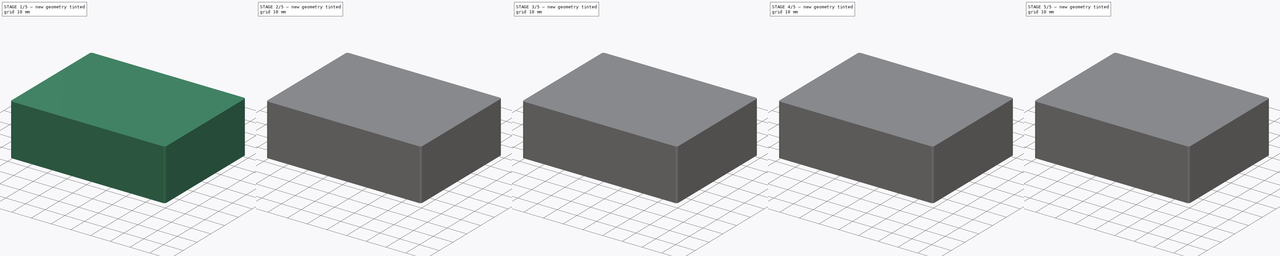
[diagram: build sequence overview — one tinted view per stage of 5, left to right]
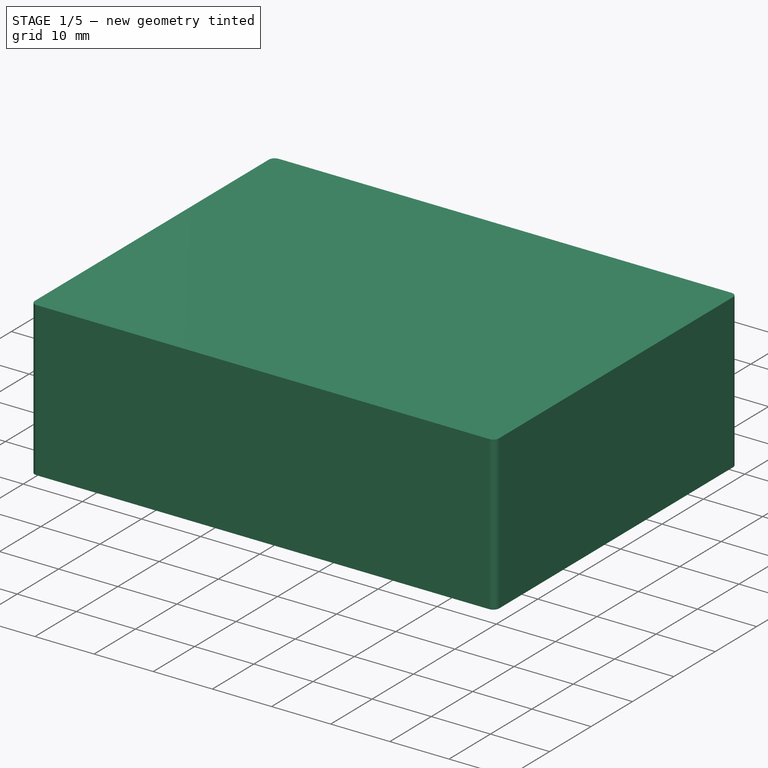
[diagram: stage 1 of 5 — iso view after this stage's code; geometry added in this stage tinted green]
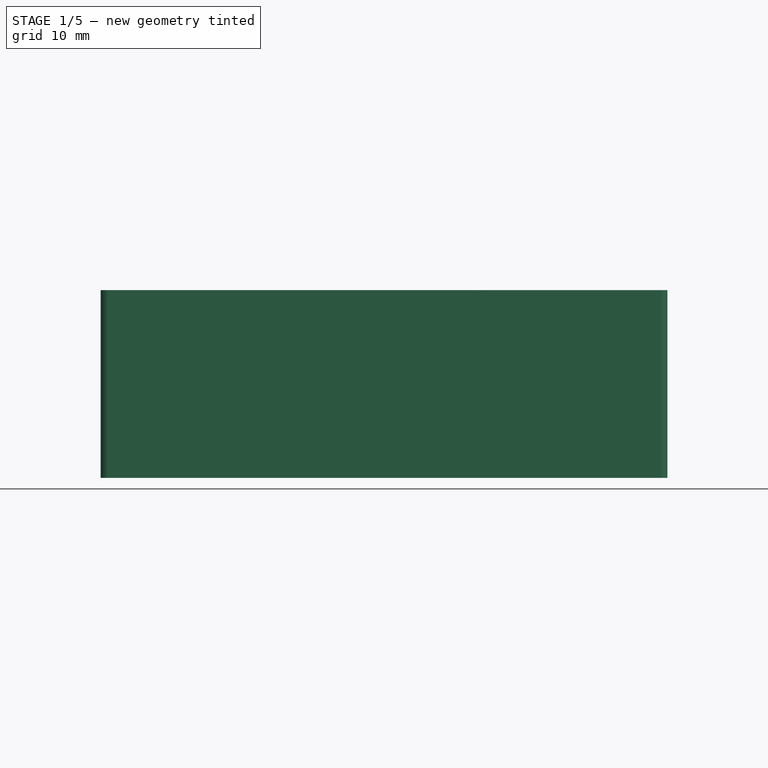
[diagram: stage 1 of 5 — front view after this stage's code; geometry added in this stage tinted green]
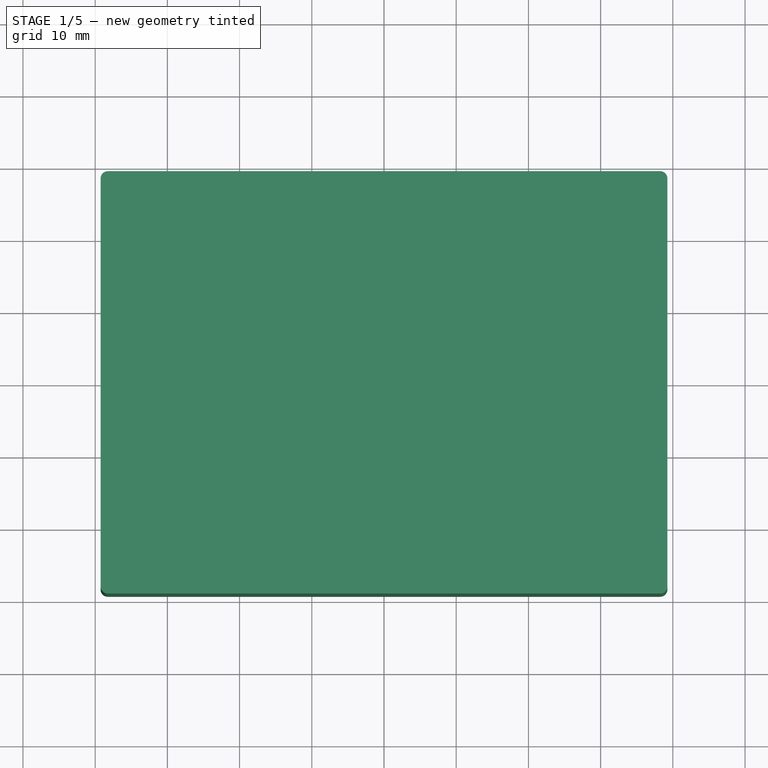
[diagram: stage 1 of 5 — top view after this stage's code; geometry added in this stage tinted green]
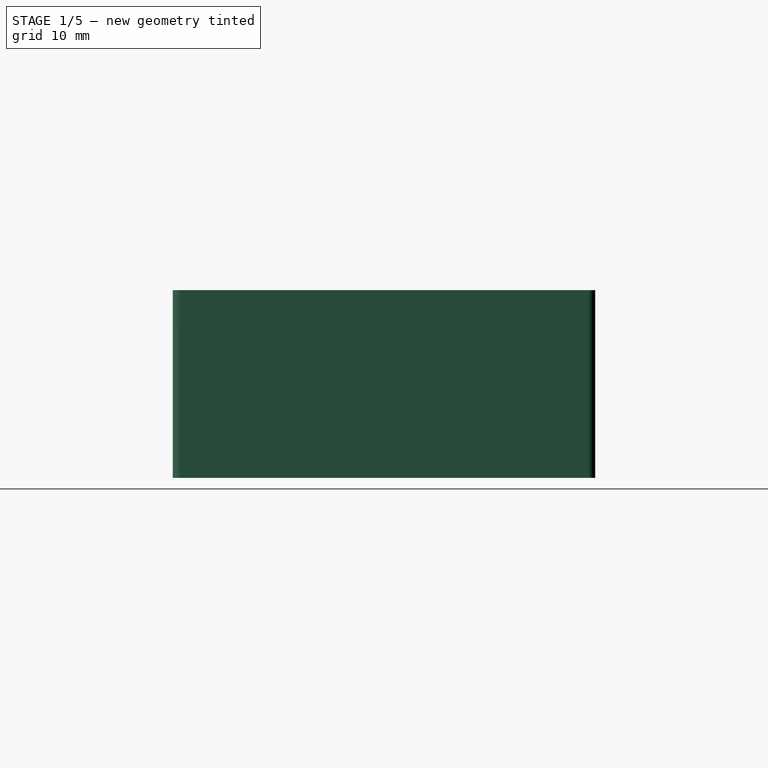
[diagram: stage 1 of 5 — right view after this stage's code; geometry added in this stage tinted green]
FCSTD DOCUMENT  (FreeCAD 0.20R0.20)
Label: 70x50-double-sided
License: All rights reserved
LicenseURL: http://en.wikipedia.org/wiki/All_rights_reserved
objects: Sketcher::SketchObject×9, PartDesign::Pad×5, PartDesign::Pocket×4, PartDesign::Mirrored×3, PartDesign::Body×3, PartDesign::Fillet×3
note: 39 computed .brp shape members not serialized (recipe doc carries the construction recipe); baked Part::Feature solids carry a one-line shape summary decoded from their .brp

FEATURE [PartDesign::Body] Body001  label="Base"
  Group = -> [Sketch002,Pad001,Sketch003,Pad002,Sketch004,Pocket001,Sketch005,Pad003,Mirrored001,Sketch006,Pocket002,Mirrored002,Fillet,Fillet001]
  Origin = -> Origin001
  Tip = -> Fillet001
FEATURE [Sketcher::SketchObject] Sketch007
  FullyConstrained = true
  MapMode = 5
  Support = -> [XY_Plane002]
  expr: Constraints[10] = 74mm + 0.4mm
  expr: Constraints[9] = 54mm + 0.4mm
  sketch-geometry (4):
    g0: LineSegment StartX=-37.2 StartY=27.2 StartZ=0 EndX=37.2 EndY=27.2 EndZ=0
    g1: LineSegment StartX=37.2 StartY=27.2 StartZ=0 EndX=37.2 EndY=-27.2 EndZ=0
    g2: LineSegment StartX=37.2 StartY=-27.2 StartZ=0 EndX=-37.2 EndY=-27.2 EndZ=0
    g3: LineSegment StartX=-37.2 StartY=-27.2 StartZ=0 EndX=-37.2 EndY=27.2 EndZ=0
  constraints (11):
    c: Coincident(g0,g1)
    c: Coincident(g1,g2)
    c: Coincident(g2,g3)
    c: Coincident(g3,g0)
    c: Horizontal(g0)
    c: Horizontal(g2)
    c: Vertical(g1)
    c: Vertical(g3)
    c: Symmetric(g0,g1,g-1)
    c: DistanceY(g3,g3) = 54.4
    c: DistanceX(g2,g2) = 74.4
FEATURE [Sketcher::SketchObject] Sketch008
  FullyConstrained = true
  MapMode = 5
  Support = -> [XY_Plane002]
  expr: Constraints[10] = 54.4mm + 0.4mm * 5 * 2 + 0.1mm
  expr: Constraints[8] = 74.40000000000001mm + 0.4mm * 5 * 2 + 0.1mm
  sketch-geometry (4):
    g0: LineSegment StartX=-39.25 StartY=29.25 StartZ=0 EndX=39.25 EndY=29.25 EndZ=0
    g1: LineSegment StartX=39.25 StartY=29.25 StartZ=0 EndX=39.25 EndY=-29.25 EndZ=0
    g2: LineSegment StartX=39.25 StartY=-29.25 StartZ=0 EndX=-39.25 EndY=-29.25 EndZ=0
    g3: LineSegment StartX=-39.25 StartY=-29.25 StartZ=0 EndX=-39.25 EndY=29.25 EndZ=0
  constraints (11):
    c: Coincident(g0,g1)
    c: Coincident(g1,g2)
    c: Coincident(g2,g3)
    c: Coincident(g3,g0)
    c: Horizontal(g0)
    c: Horizontal(g2)
    c: Vertical(g1)
    c: Vertical(g3)
    c: DistanceX(g2,g2) = 78.5
    c: Symmetric(g0,g1,g-1)
    c: DistanceY(g3,g3) = 58.5
FEATURE [PartDesign::Pad] Pad004
  Direction = (0,0,1)
  Length = 26
  Length2 = 10
  Profile = -> Sketch008
  ReferenceAxis = -> Sketch008 [N_Axis]
  Type = 0
FEATURE [PartDesign::Pocket] Pocket003
  BaseFeature = -> Pad004
  Direction = (0,0,-1)
  Length = 24.8
  Length2 = 5
  Profile = -> Sketch007
  ReferenceAxis = -> Sketch007 [N_Axis]
  Reversed = true
  Type = 0
  expr: Length = 26mm - 0.2mm * 6
FEATURE [PartDesign::Fillet] Fillet002
  Base = -> Pocket003 [Edge5,Edge1,Edge8,Edge2]
  BaseFeature = -> Pocket003
  Radius = 1
  SupportTransform = false
  UseAllEdges = false
FEATURE [PartDesign::Body] Body002  label="Top"
  Group = -> [Sketch007,Sketch008,Pad004,Pocket003,Fillet002]
  Origin = -> Origin002
  Placement = pos=(0,0,30) rot=(0,0,1;0rad)
  Tip = -> Fillet002
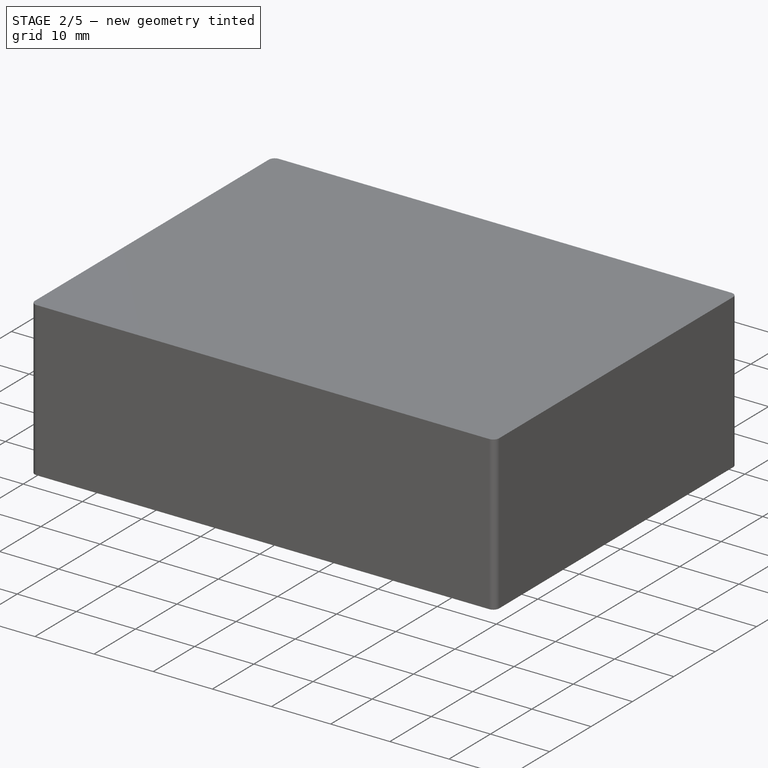
[diagram: stage 2 of 5 — iso view after this stage's code; geometry added in this stage tinted green]
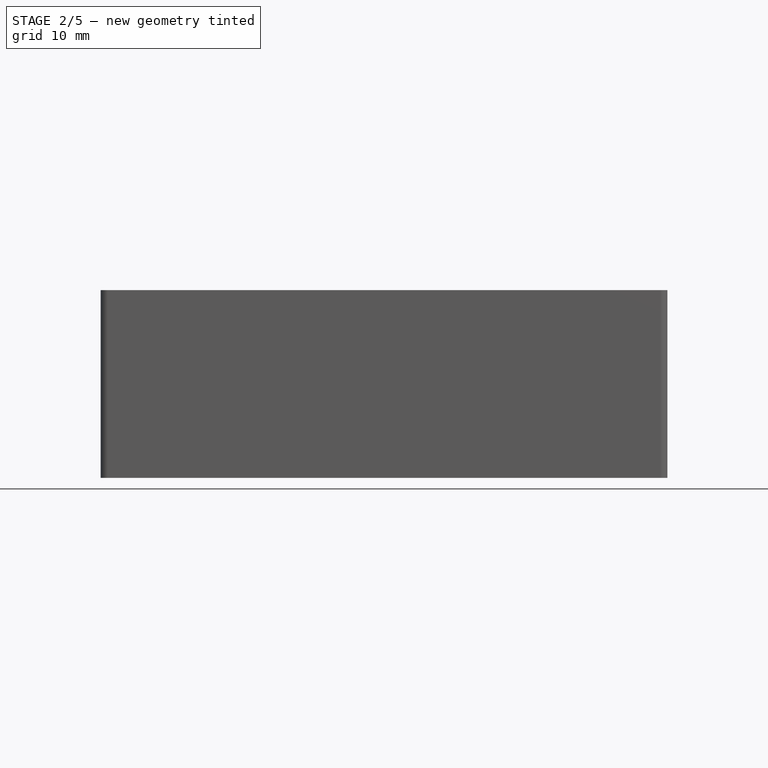
[diagram: stage 2 of 5 — front view after this stage's code; geometry added in this stage tinted green]
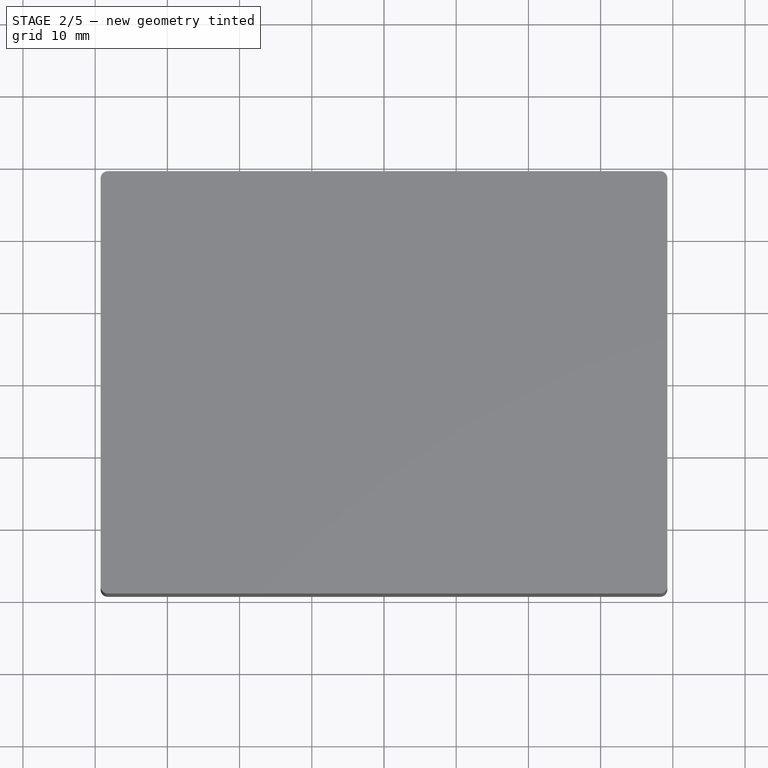
[diagram: stage 2 of 5 — top view after this stage's code; geometry added in this stage tinted green]
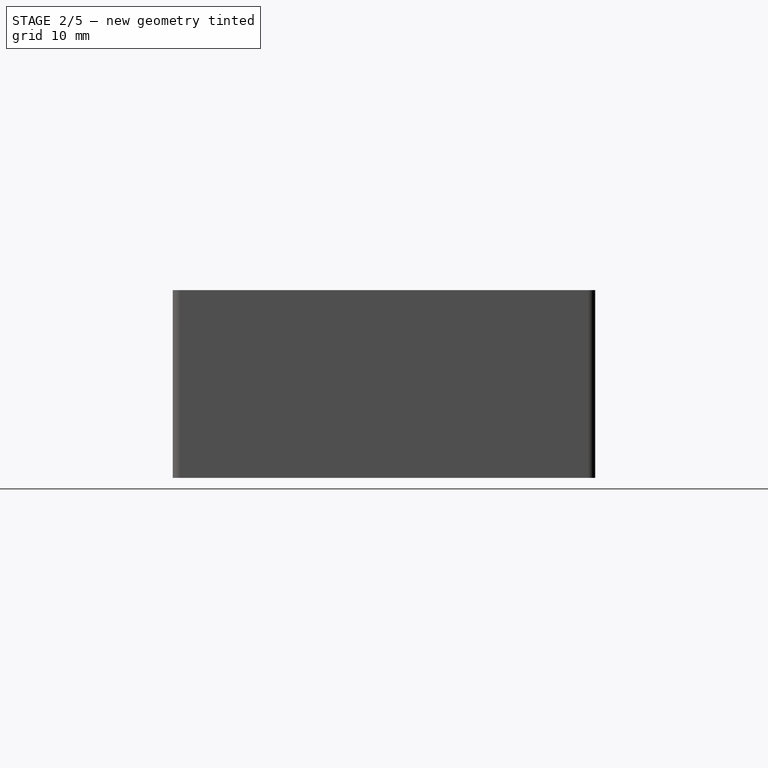
[diagram: stage 2 of 5 — right view after this stage's code; geometry added in this stage tinted green]
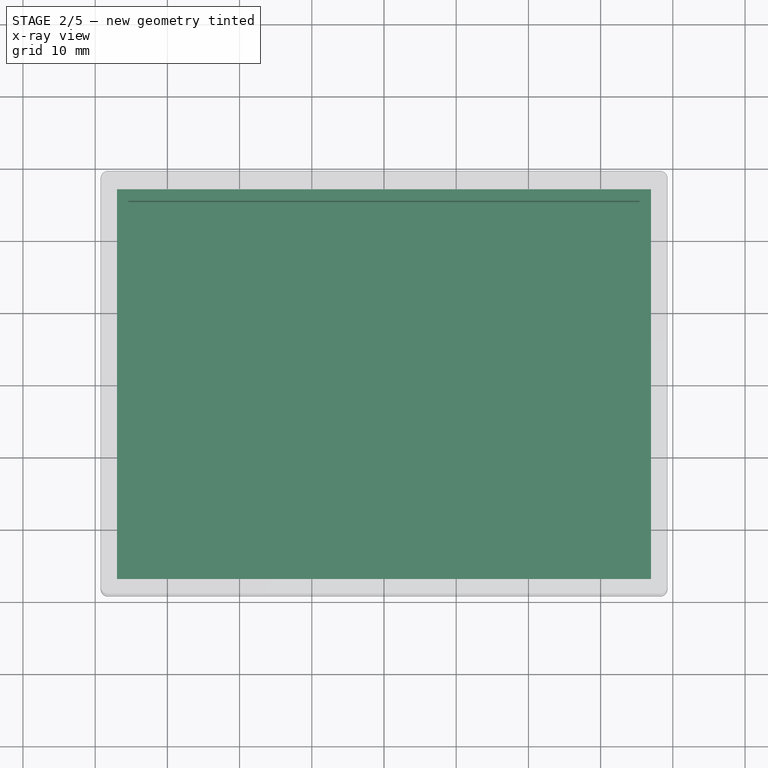
[diagram: stage 2 of 5 — x-ray composite at the top view; earlier geometry ghosted, this stage's added geometry solid]
FEATURE [PartDesign::Body] Body  label="PCB"
  Group = -> [Sketch,Pad,Sketch001,Pocket,Mirrored]
  Origin = -> Origin
  Placement = pos=(0,0,10.2) rot=(0,0,1;0rad)
  Tip = -> Mirrored
  expr: .Placement.Base.z = 2mm + 8.200000000000001mm
FEATURE [Sketcher::SketchObject] Sketch002
  FullyConstrained = true
  MapMode = 5
  Support = -> [XY_Plane001]
  expr: Constraints[10] = 50mm + 0.4mm * 5 * 2
  expr: Constraints[9] = 70mm + 0.4mm * 5 * 2
  sketch-geometry (4):
    g0: LineSegment StartX=-37 StartY=27 StartZ=0 EndX=37 EndY=27 EndZ=0
    g1: LineSegment StartX=37 StartY=27 StartZ=0 EndX=37 EndY=-27 EndZ=0
    g2: LineSegment StartX=37 StartY=-27 StartZ=0 EndX=-37 EndY=-27 EndZ=0
    g3: LineSegment StartX=-37 StartY=-27 StartZ=0 EndX=-37 EndY=27 EndZ=0
  constraints (11):
    c: Coincident(g0,g1)
    c: Coincident(g1,g2)
    c: Coincident(g2,g3)
    c: Coincident(g3,g0)
    c: Horizontal(g0)
    c: Horizontal(g2)
    c: Vertical(g1)
    c: Vertical(g3)
    c: Symmetric(g1,g0,g-1)
    c: DistanceX(g0,g0) = 74
    c: DistanceY(g3,g3) = 54
FEATURE [PartDesign::Pad] Pad001
  Direction = (0,0,1)
  Length = 2
  Length2 = 10
  Profile = -> Sketch002
  ReferenceAxis = -> Sketch002 [N_Axis]
  Type = 0
FEATURE [Sketcher::SketchObject] Sketch003
  ExternalGeometry = -> [Pad001]
  FullyConstrained = true
  MapMode = 5
  Placement = pos=(0,0,2) rot=(0,0,1;0rad)
  Support = -> [Pad001]
  sketch-geometry (4):
    g0: LineSegment StartX=-37 StartY=27 StartZ=0 EndX=37 EndY=27 EndZ=0
    g1: LineSegment StartX=37 StartY=27 StartZ=0 EndX=37 EndY=-27 EndZ=0
    g2: LineSegment StartX=37 StartY=-27 StartZ=0 EndX=-37 EndY=-27 EndZ=0
    g3: LineSegment StartX=-37 StartY=-27 StartZ=0 EndX=-37 EndY=27 EndZ=0
  constraints (10):
    c: Coincident(g0,g1)
    c: Coincident(g1,g2)
    c: Coincident(g2,g3)
    c: Coincident(g3,g0)
    c: Horizontal(g0)
    c: Horizontal(g2)
    c: Vertical(g1)
    c: Vertical(g3)
    c: Coincident(g1,g-4)
    c: Coincident(g0,g-3)
FEATURE [PartDesign::Pad] Pad002
  BaseFeature = -> Pad001
  Direction = (0,0,1)
  Length = 9.6
  Length2 = 10
  Profile = -> Sketch003
  ReferenceAxis = -> Sketch003 [N_Axis]
  Type = 0
  expr: Length = 8mm + 1.6mm
FEATURE [Sketcher::SketchObject] Sketch004
  ExternalGeometry = -> [Pad002]
  FullyConstrained = true
  MapMode = 5
  Placement = pos=(0,0,11.6) rot=(0,0,1;0rad)
  Support = -> [Pad002]
  expr: Constraints[10] = 2mm - 0.4mm
  expr: Constraints[9] = 0.4mm * 4
  sketch-geometry (4):
    g0: LineSegment StartX=-35.4 StartY=25.4 StartZ=0 EndX=35.4 EndY=25.4 EndZ=0
    g1: LineSegment StartX=35.4 StartY=25.4 StartZ=0 EndX=35.4 EndY=-25.4 EndZ=0
    g2: LineSegment StartX=35.4 StartY=-25.4 StartZ=0 EndX=-35.4 EndY=-25.4 EndZ=0
    g3: LineSegment StartX=-35.4 StartY=-25.4 StartZ=0 EndX=-35.4 EndY=25.4 EndZ=0
  constraints (11):
    c: Coincident(g0,g1)
    c: Coincident(g1,g2)
    c: Coincident(g2,g3)
    c: Coincident(g3,g0)
    c: Horizontal(g0)
    c: Horizontal(g2)
    c: Vertical(g1)
    c: Vertical(g3)
    c: Symmetric(g1,g0,g-1)
    c: DistanceY(g-3,g1) = 1.6
    c: DistanceX(g1,g-3) = 1.6
FEATURE [PartDesign::Pocket] Pocket001
  BaseFeature = -> Pad002
  Direction = (0,0,-1)
  Length = 10.6
  Length2 = 5
  Profile = -> Sketch004
  ReferenceAxis = -> Sketch004 [N_Axis]
  Type = 0
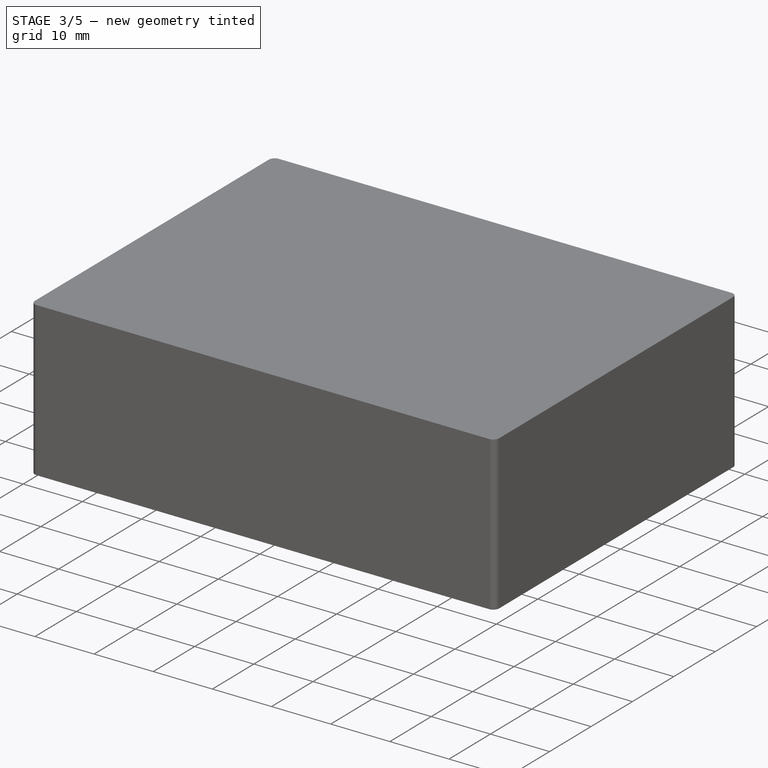
[diagram: stage 3 of 5 — iso view after this stage's code; geometry added in this stage tinted green]
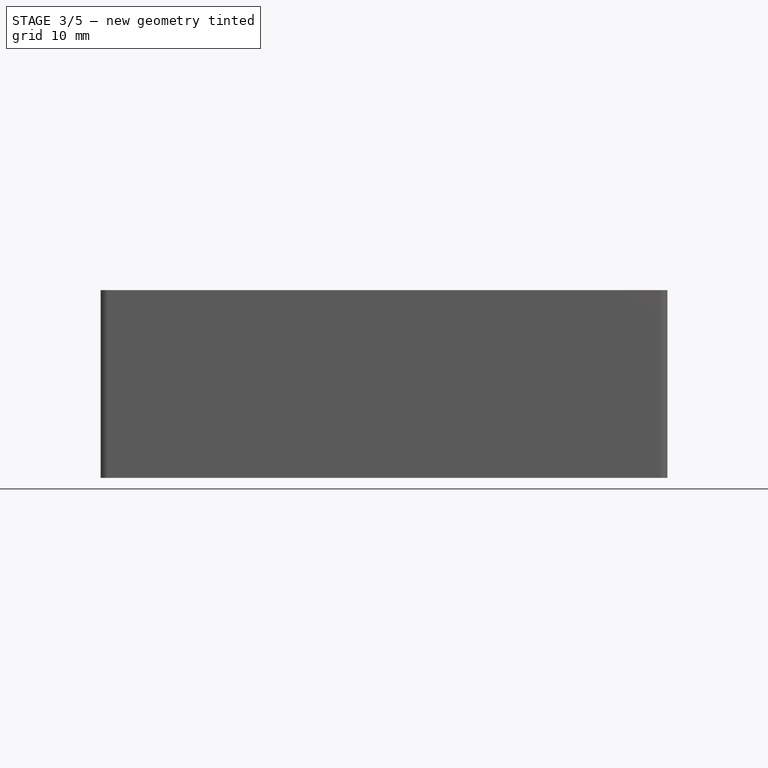
[diagram: stage 3 of 5 — front view after this stage's code; geometry added in this stage tinted green]
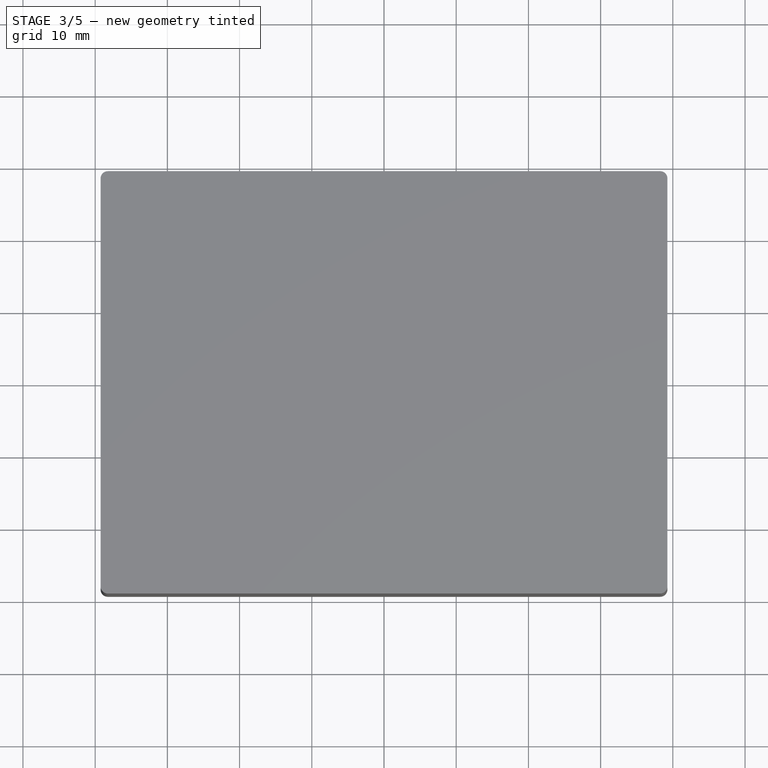
[diagram: stage 3 of 5 — top view after this stage's code; geometry added in this stage tinted green]
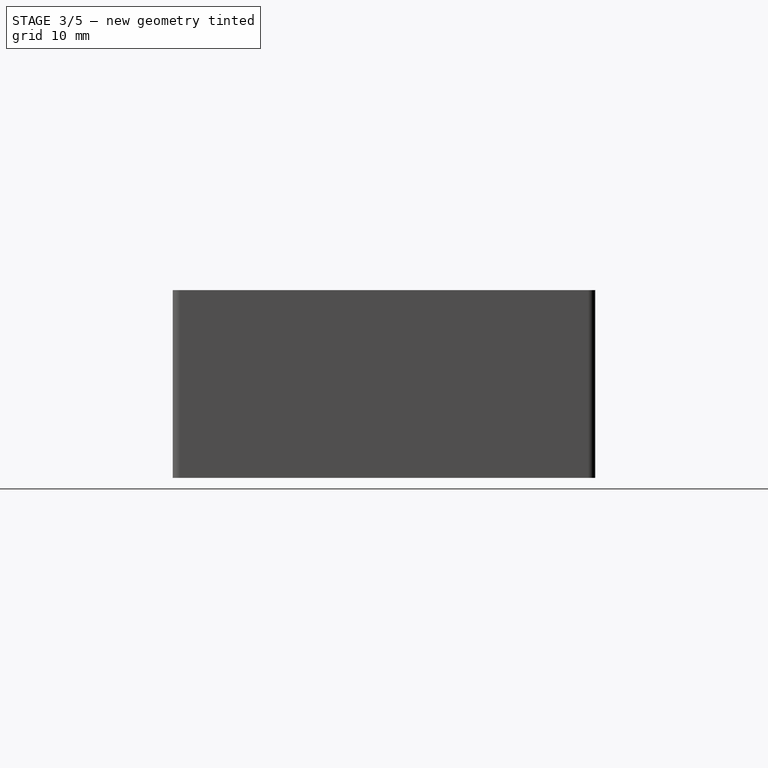
[diagram: stage 3 of 5 — right view after this stage's code; geometry added in this stage tinted green]
FEATURE [Sketcher::SketchObject] Sketch005
  ExternalGeometry = -> [Pocket001]
  FullyConstrained = true
  MapMode = 5
  Placement = pos=(0,0,1) rot=(0,0,1;0rad)
  Support = -> [Pocket001]
  sketch-geometry (12):
    g0: LineSegment StartX=-31 StartY=23 StartZ=0 EndX=-31 EndY=25.4 EndZ=0
    g1: LineSegment StartX=-31 StartY=25.4 StartZ=0 EndX=-35.4 EndY=25.4 EndZ=0
    g2: LineSegment StartX=-35.4 StartY=25.4 StartZ=0 EndX=-35.4 EndY=21 EndZ=0
    g3: LineSegment StartX=-35.4 StartY=21 StartZ=0 EndX=-33 EndY=21 EndZ=0
    g4: LineSegment StartX=-33 StartY=23 StartZ=0 EndX=-33 EndY=21 EndZ=0
    g5: LineSegment StartX=-31 StartY=23 StartZ=0 EndX=-33 EndY=23 EndZ=0
    g6: ArcOfCircle CenterX=-33 CenterY=23 CenterZ=0 NormalX=0 NormalY=0 NormalZ=1 AngleXU=0 Radius=2 StartAngle=4.71239 EndAngle=6.28319
    g7: ArcOfCircle CenterX=-33 CenterY=-23 CenterZ=0 NormalX=0 NormalY=0 NormalZ=1 AngleXU=0 Radius=2 StartAngle=-9e-16 EndAngle=1.5708
    g8: LineSegment StartX=-35.4 StartY=-21 StartZ=0 EndX=-33 EndY=-21 EndZ=0
    g9: LineSegment StartX=-35.4 StartY=-21 StartZ=0 EndX=-35.4 EndY=-25.4 EndZ=0
    g10: LineSegment StartX=-35.4 StartY=-25.4 StartZ=0 EndX=-31 EndY=-25.4 EndZ=0
    g11: LineSegment StartX=-31 StartY=-25.4 StartZ=0 EndX=-31 EndY=-23 EndZ=0
  constraints (34):
    c: Coincident(g0,g1)
    c: Coincident(g1,g2)
    c: Coincident(g2,g3)
    c: Horizontal(g3)
    c: Coincident(g1,g-3)
    c: PointOnObject(g0,g-3)
    c: Vertical(g0)
    c: PointOnObject(g2,g-4)
    c: Vertical(g4)
    c: Coincident(g4,g3)
    c: Horizontal(g5)
    c: Coincident(g5,g0)
    c: Coincident(g4,g5)
    c: Coincident(g6,g4)
    c: Coincident(g6,g3)
    c: Coincident(g6,g0)
    c: DistanceY(g6,g1) = 2.4
    c: DistanceY(g4,g4) = 2
    c: DistanceX(g1,g6) = 2.4
    c: DistanceY(g-4,g7) = 2.4
    c: DistanceX(g-4,g7) = 2.4
    c: Horizontal(g8)
    c: Coincident(g7,g8)
    c: Vertical(g9)
    c: Coincident(g9,g10)
    c: Horizontal(g10)
    c: Coincident(g10,g11)
    c: Coincident(g11,g7)
    c: Vertical(g11)
    c: Coincident(g8,g9)
    c: Equal(g11,g8)
    c: Coincident(g9,g-4)
    c: Angle(g7) = 1.5708
    c: Diameter(g7) = 4
FEATURE [PartDesign::Pad] Pad003
  BaseFeature = -> Pocket001
  Direction = (0,0,1)
  Length = 9.2
  Length2 = 10
  Profile = -> Sketch005
  ReferenceAxis = -> Sketch005 [N_Axis]
  Type = 0
FEATURE [PartDesign::Mirrored] Mirrored001
  BaseFeature = -> Pad003
  MirrorPlane = -> Sketch005 [V_Axis]
  Originals = -> [Pad003]
FEATURE [Sketcher::SketchObject] Sketch006
  ExternalGeometry = -> [Mirrored001]
  FullyConstrained = true
  MapMode = 5
  Placement = pos=(0,0,10.2) rot=(0,0,1;0rad)
  Support = -> [Mirrored001]
  sketch-geometry (2):
    g0: Circle CenterX=-33 CenterY=23 CenterZ=0 NormalX=0 NormalY=0 NormalZ=1 AngleXU=0 Radius=0.75
    g1: Circle CenterX=-33 CenterY=-23 CenterZ=0 NormalX=0 NormalY=0 NormalZ=1 AngleXU=0 Radius=0.75
  constraints (4):
    c: Coincident(g-3,g0)
    c: Diameter(g0) = 1.5
    c: Coincident(g1,g-4)
    c: Diameter(g1) = 1.5
FEATURE [PartDesign::Pocket] Pocket002
  BaseFeature = -> Mirrored001
  Direction = (0,0,-1)
  Length = 8
  Length2 = 5
  Profile = -> Sketch006
  ReferenceAxis = -> Sketch006 [N_Axis]
  Type = 0
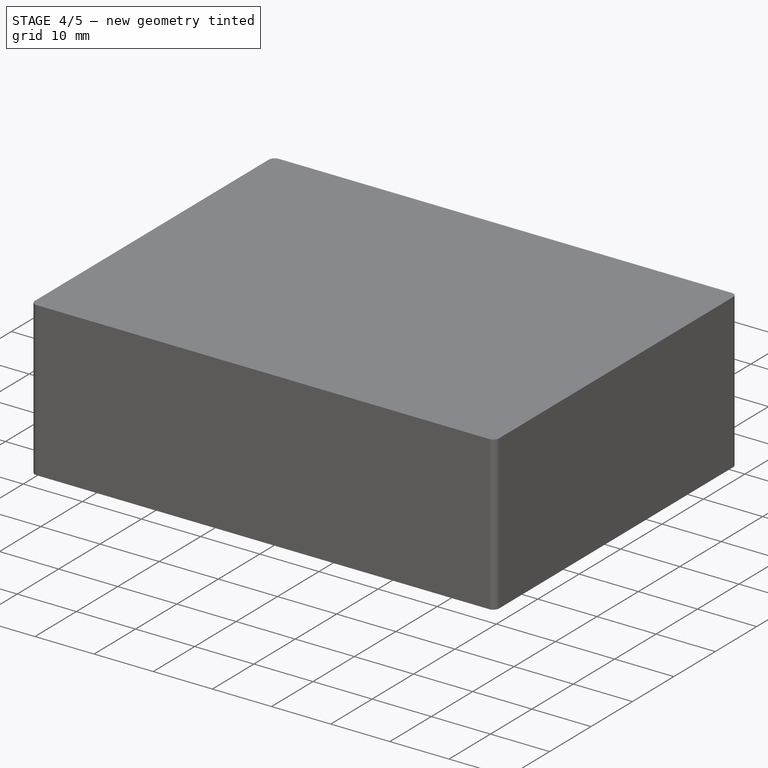
[diagram: stage 4 of 5 — iso view after this stage's code; geometry added in this stage tinted green]
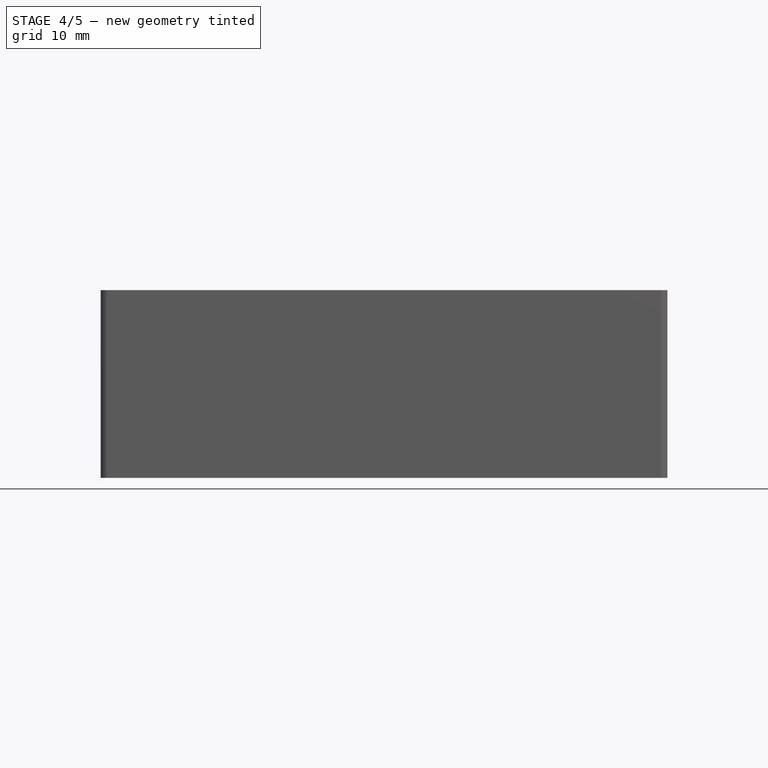
[diagram: stage 4 of 5 — front view after this stage's code; geometry added in this stage tinted green]
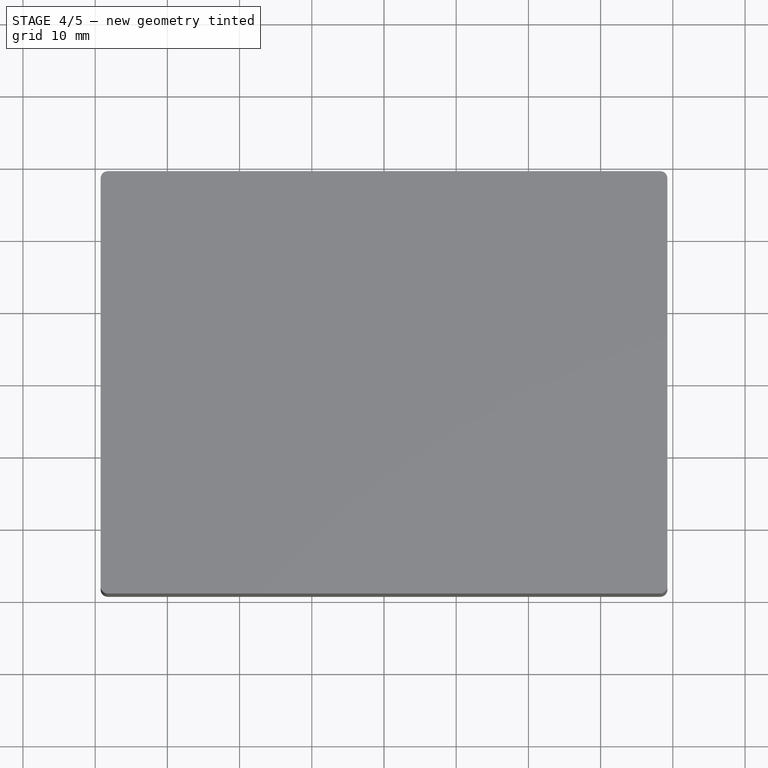
[diagram: stage 4 of 5 — top view after this stage's code; geometry added in this stage tinted green]
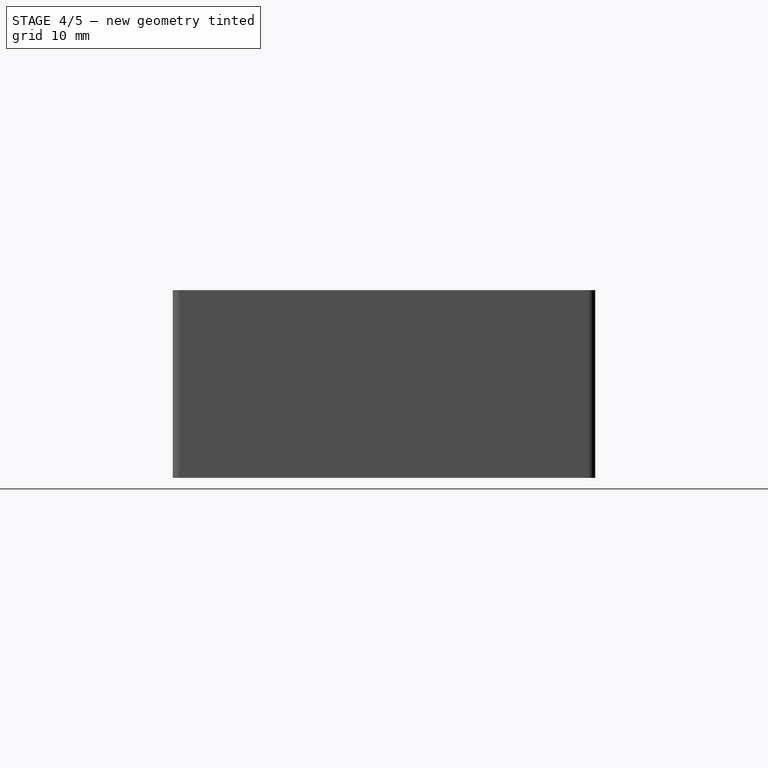
[diagram: stage 4 of 5 — right view after this stage's code; geometry added in this stage tinted green]
FEATURE [PartDesign::Mirrored] Mirrored002
  BaseFeature = -> Pocket002
  MirrorPlane = -> Sketch006 [V_Axis]
  Originals = -> [Pocket002]
FEATURE [PartDesign::Fillet] Fillet
  Base = -> Mirrored002 [Edge12,Edge1,Edge13,Edge2,Edge18,Edge8,Edge16,Edge5]
  BaseFeature = -> Mirrored002
  Radius = 1
  SupportTransform = false
  UseAllEdges = false
FEATURE [PartDesign::Fillet] Fillet001
  Base = -> Fillet [Edge45,Edge51,Edge63,Edge57]
  BaseFeature = -> Fillet
  Radius = 1
  SupportTransform = false
  UseAllEdges = false
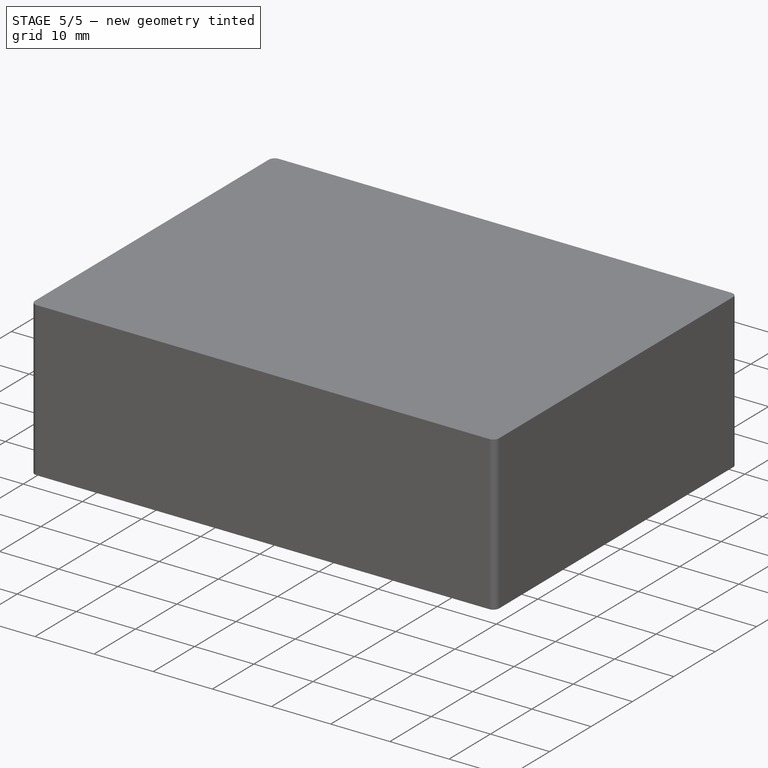
[diagram: stage 5 of 5 — iso view after this stage's code; geometry added in this stage tinted green]
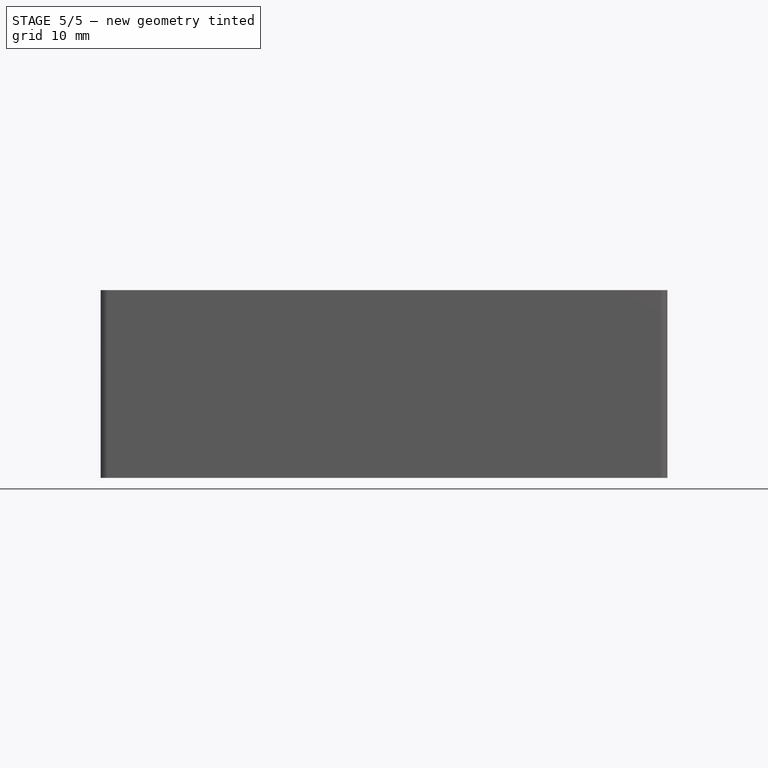
[diagram: stage 5 of 5 — front view after this stage's code; geometry added in this stage tinted green]
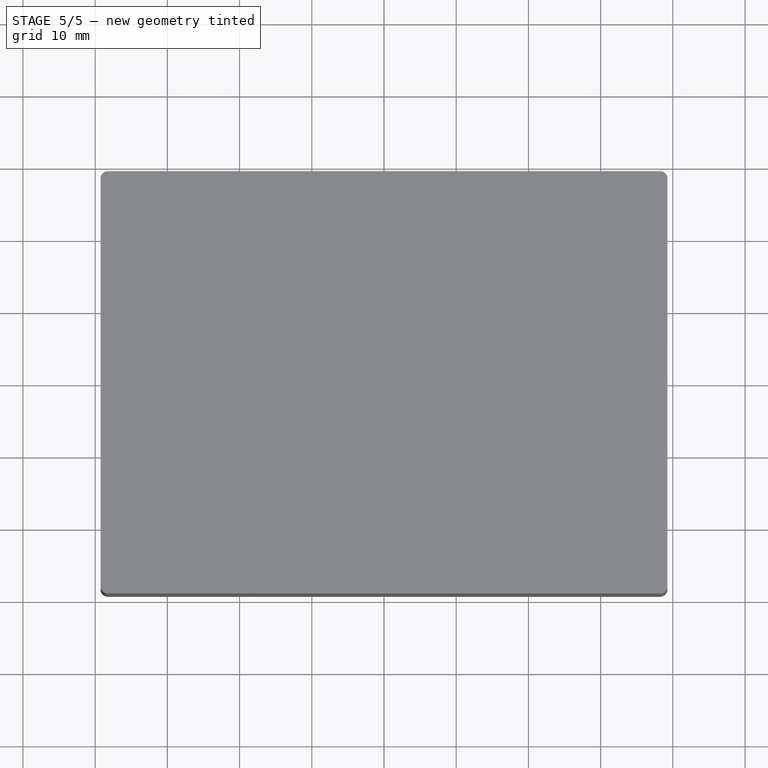
[diagram: stage 5 of 5 — top view after this stage's code; geometry added in this stage tinted green]
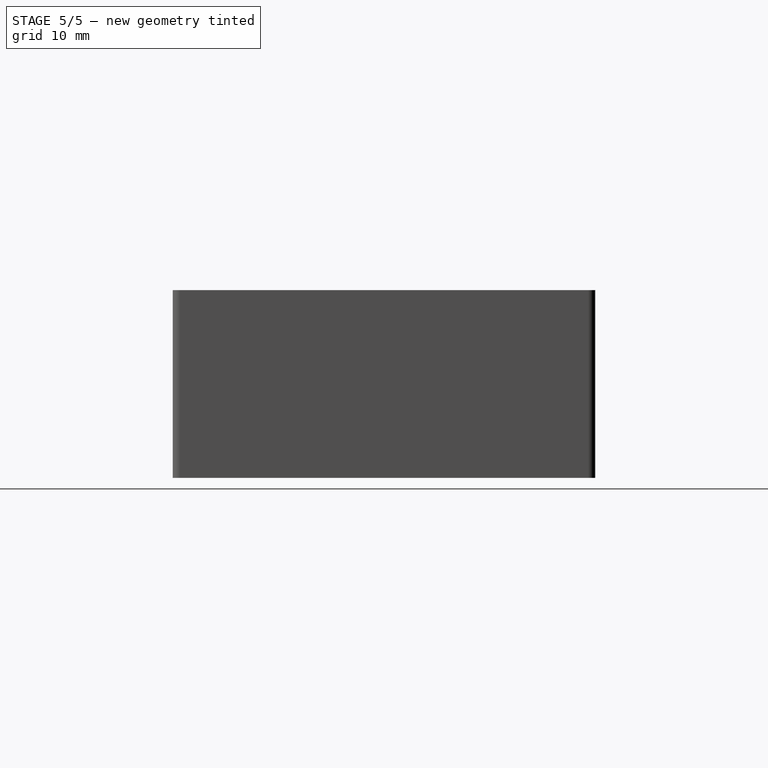
[diagram: stage 5 of 5 — right view after this stage's code; geometry added in this stage tinted green]
FEATURE [Sketcher::SketchObject] Sketch
  FullyConstrained = true
  MapMode = 5
  Support = -> [XY_Plane]
  sketch-geometry (4):
    g0: LineSegment StartX=-35 StartY=25 StartZ=0 EndX=35 EndY=25 EndZ=0
    g1: LineSegment StartX=35 StartY=25 StartZ=0 EndX=35 EndY=-25 EndZ=0
    g2: LineSegment StartX=35 StartY=-25 StartZ=0 EndX=-35 EndY=-25 EndZ=0
    g3: LineSegment StartX=-35 StartY=-25 StartZ=0 EndX=-35 EndY=25 EndZ=0
  constraints (11):
    c: Coincident(g0,g1)
    c: Coincident(g1,g2)
    c: Coincident(g2,g3)
    c: Coincident(g3,g0)
    c: Horizontal(g0)
    c: Horizontal(g2)
    c: Vertical(g1)
    c: Vertical(g3)
    c: Symmetric(g0,g2,g-1)
    c: DistanceX(g2,g2) = 70
    c: DistanceY(g1,g1) = 50
FEATURE [PartDesign::Pad] Pad
  Direction = (0,0,1)
  Length = 1.6
  Length2 = 10
  Profile = -> Sketch
  ReferenceAxis = -> Sketch [N_Axis]
  Type = 0
FEATURE [Sketcher::SketchObject] Sketch001
  ExternalGeometry = -> [Pad]
  FullyConstrained = true
  MapMode = 5
  Placement = pos=(0,0,1.6) rot=(0,0,1;0rad)
  Support = -> [Pad]
  sketch-geometry (8):
    g0: Circle CenterX=-33 CenterY=23 CenterZ=0 NormalX=0 NormalY=0 NormalZ=1 AngleXU=0 Radius=1.1
    g1: Circle CenterX=-33 CenterY=-23 CenterZ=0 NormalX=0 NormalY=0 NormalZ=1 AngleXU=0 Radius=1.1
    g2: LineSegment StartX=-33 StartY=23 StartZ=0 EndX=-33 EndY=-23 EndZ=0
    g3: GeomPoint X=-33 Y=21.9 Z=0
    g4: GeomPoint X=-33 Y=-21.9 Z=0
    g5: GeomPoint X=-33 Y=24.1 Z=0
    g6: LineSegment StartX=-33 StartY=23 StartZ=0 EndX=-35 EndY=23 EndZ=0
    g7: GeomPoint X=-34.1 Y=23 Z=0
  constraints (19):
    c: Equal(g0,g1)
    c: Coincident(g2,g0)
    c: Coincident(g2,g1)
    c: Vertical(g2)
    c: Diameter(g0) = 2.2
    c: PointOnObject(g4,g1)
    c: PointOnObject(g4,g2)
    c: PointOnObject(g3,g0)
    c: PointOnObject(g3,g2)
    c: PointOnObject(g5,g2)
    c: PointOnObject(g5,g0)
    c: Horizontal(g6)
    c: Coincident(g0,g6)
    c: PointOnObject(g6,g-3)
    c: PointOnObject(g7,g6)
    c: PointOnObject(g7,g0)
    c: DistanceY(g0,g-3) = 2
    c: DistanceX(g-3,g0) = 2
    c: DistanceY(g-3,g1) = 2
FEATURE [PartDesign::Pocket] Pocket
  BaseFeature = -> Pad
  Direction = (0,0,-1)
  Length = 5
  Length2 = 5
  Profile = -> Sketch001
  ReferenceAxis = -> Sketch001 [N_Axis]
  Type = 2
FEATURE [PartDesign::Mirrored] Mirrored
  BaseFeature = -> Pocket
  MirrorPlane = -> Sketch001 [V_Axis]
  Originals = -> [Pocket]
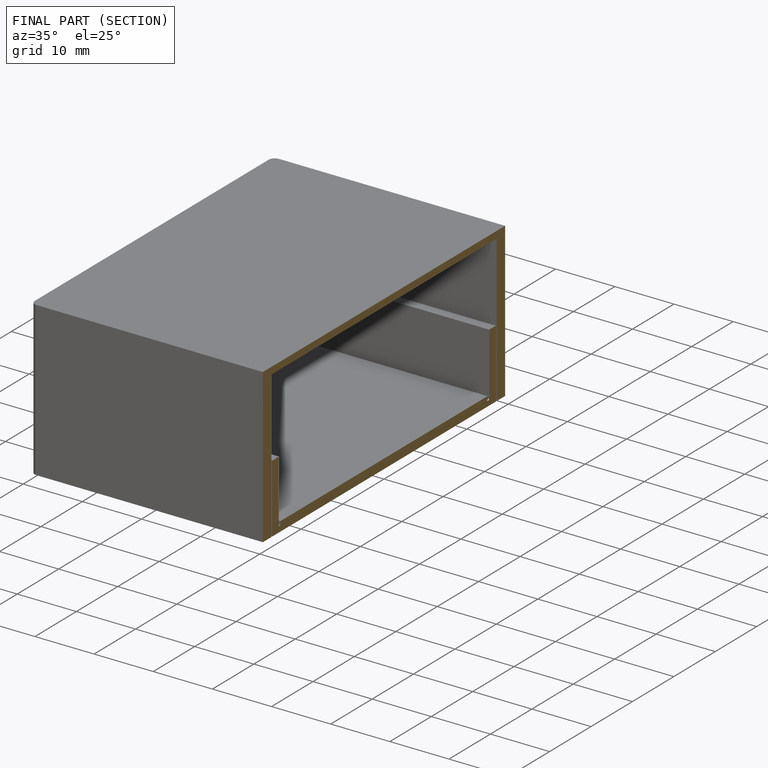
[diagram: finished part — half-section view (interior)]
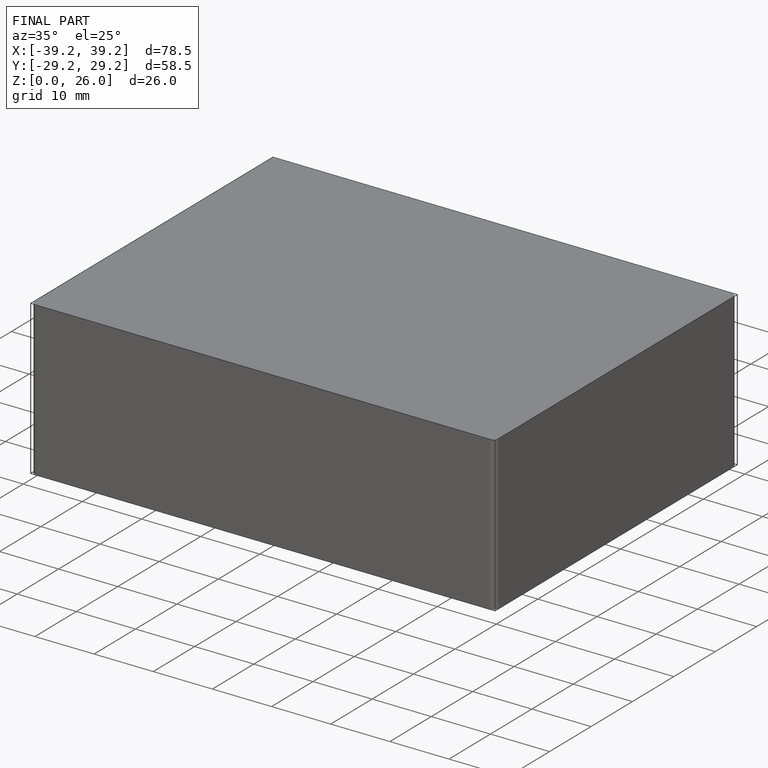
[diagram: finished part — iso view with bounding-box wireframe]
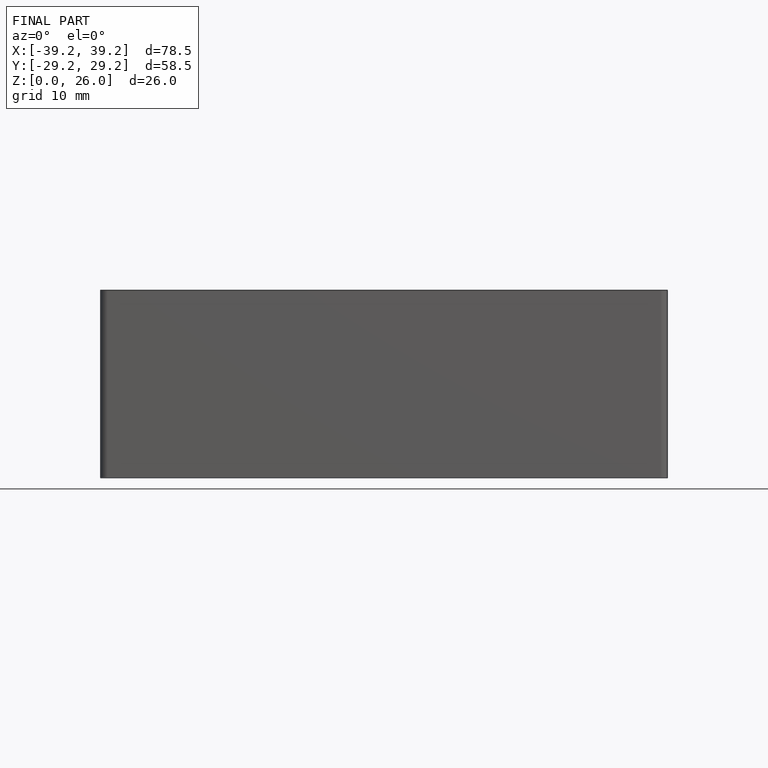
[diagram: finished part — front view with bounding-box wireframe]
